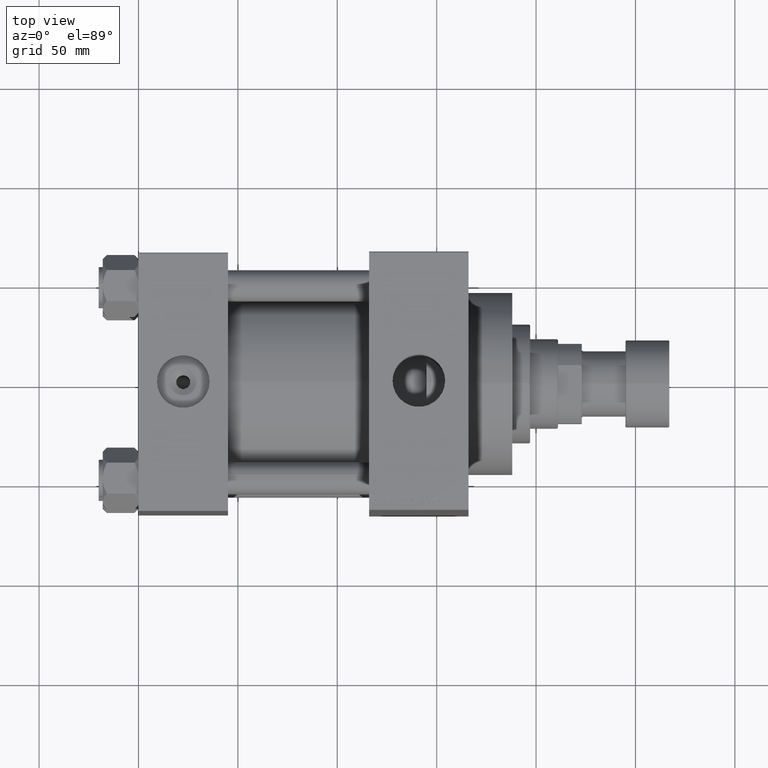
[diagram: clean part render]
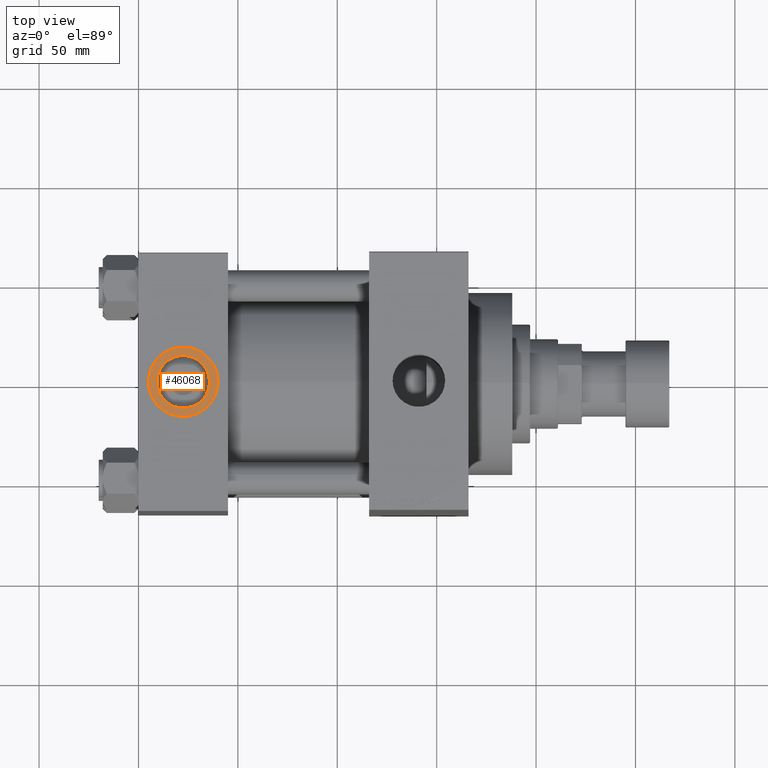
[diagram: same view with one face highlighted and labeled with its STEP entity id]
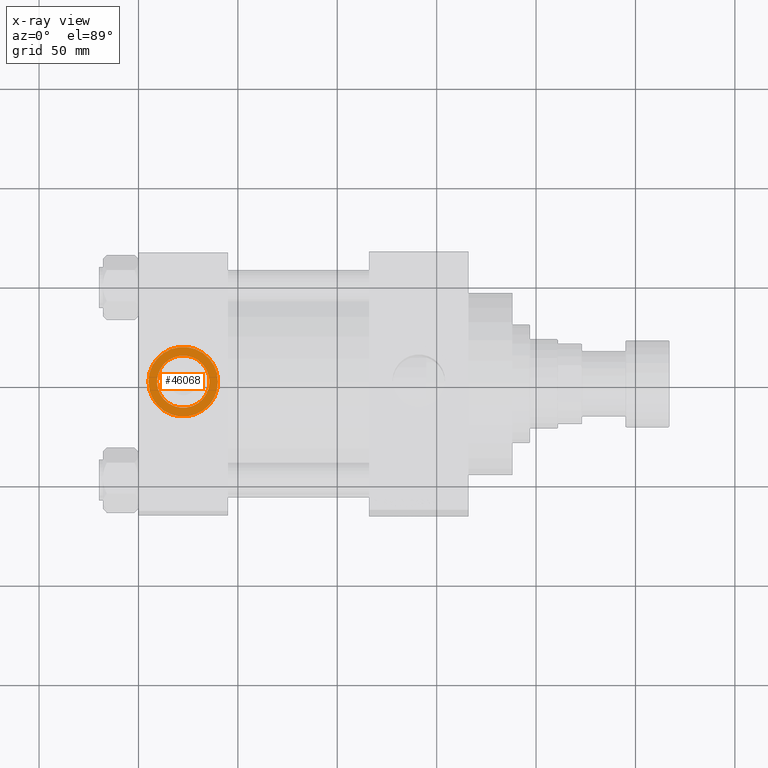
[diagram: x-ray of the same camera — body ghosted, the highlighted face saturated]
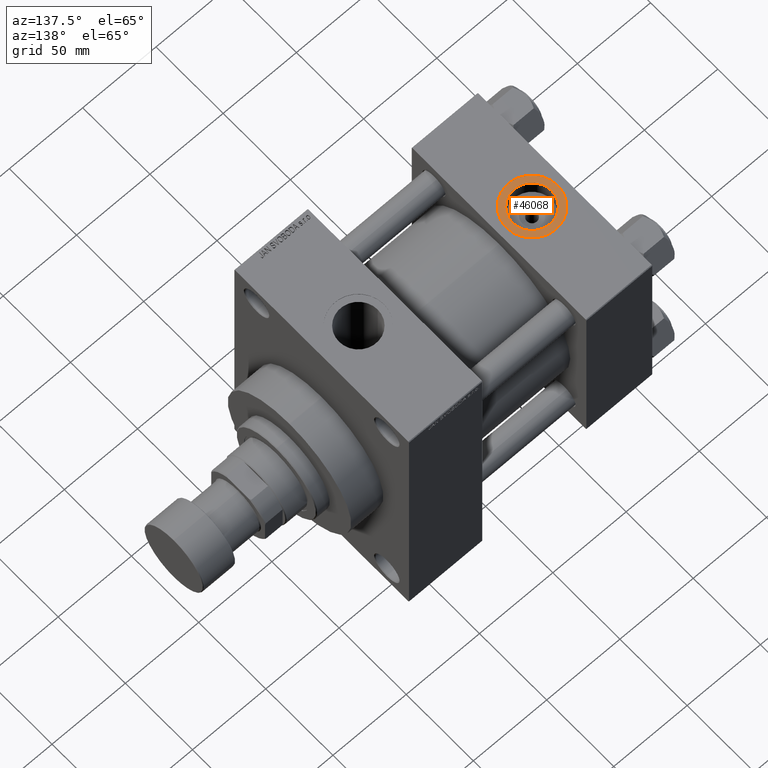
[diagram: same view with one face highlighted and labeled with its STEP entity id]
A machine part, top view. The second image highlights one B-rep face of the part: STEP entity #46068.
The next image is the same camera in x-ray: the body ghosted, the highlighted face saturated — about 0% of this face is hidden behind the body in this view.
A second angle (auxiliary view) of the same face is appended — the face is thin or edge-on in the first view.
In plain terms, the highlighted planar face has unit normal (0, 0, 1).
Its self-contained STEP definition (entity closure, byte-faithful):
#581 = ORIENTED_EDGE ( 'NONE', *, *, #17807, .T. ) ;
#8113 = ORIENTED_EDGE ( 'NONE', *, *, #45850, .T. ) ;
#8682 = CIRCLE ( 'NONE', #44403, 17.50000000000000000 ) ;
#9359 = DIRECTION ( 'NONE',  ( 1.000000000000000000, 0.000000000000000000, 0.000000000000000000 ) ) ;
#10071 = DIRECTION ( 'NONE',  ( 0.000000000000000000, 0.000000000000000000, 1.000000000000000000 ) ) ;
#11644 = DIRECTION ( 'NONE',  ( 0.000000000000000000, 0.000000000000000000, 1.000000000000000000 ) ) ;
#13484 = DIRECTION ( 'NONE',  ( 0.000000000000000000, 0.000000000000000000, 1.000000000000000000 ) ) ;
#13567 = CARTESIAN_POINT ( 'NONE',  ( 40.00000000000000000, -8.673617379884035472E-15, 64.79999999999999716 ) ) ;
#14505 = CARTESIAN_POINT ( 'NONE',  ( 22.50000000000000000, -8.673617379884035472E-15, 64.79999999999999716 ) ) ;
#14507 = ORIENTED_EDGE ( 'NONE', *, *, #15800, .F. ) ;
#15800 = EDGE_CURVE ( 'NONE', #48133, #42119, #47423, .T. ) ;
#15947 = VERTEX_POINT ( 'NONE', #13567 ) ;
#17130 = CARTESIAN_POINT ( 'NONE',  ( 22.50000000000000000, -8.673617379884035472E-15, 64.79999999999999716 ) ) ;
#17807 = EDGE_CURVE ( 'NONE', #15947, #38666, #8682, .T. ) ;
#18203 = DIRECTION ( 'NONE',  ( 0.000000000000000000, 0.000000000000000000, 1.000000000000000000 ) ) ;
#18789 = EDGE_LOOP ( 'NONE', ( #581, #8113 ) ) ;
#20200 = CARTESIAN_POINT ( 'NONE',  ( 9.279999999999994031, -7.054634311411234321E-15, 64.79999999999999716 ) ) ;
#21466 = CARTESIAN_POINT ( 'NONE',  ( 4.999999999999997335, -6.530485481376167224E-15, 64.79999999999999716 ) ) ;
#22035 = DIRECTION ( 'NONE',  ( 0.000000000000000000, 0.000000000000000000, 1.000000000000000000 ) ) ;
#23714 = PLANE ( 'NONE',  #29748 ) ;
#24734 = EDGE_CURVE ( 'NONE', #42119, #48133, #33680, .T. ) ;
#25262 = CARTESIAN_POINT ( 'NONE',  ( 22.50000000000000000, -8.673617379884035472E-15, 64.79999999999999716 ) ) ;
#25502 = DIRECTION ( 'NONE',  ( 1.000000000000000000, 0.000000000000000000, 0.000000000000000000 ) ) ;
#27256 = AXIS2_PLACEMENT_3D ( 'NONE', #37419, #11644, #40824 ) ;
#28606 = DIRECTION ( 'NONE',  ( 1.000000000000000000, 0.000000000000000000, 0.000000000000000000 ) ) ;
#29748 = AXIS2_PLACEMENT_3D ( 'NONE', #17130, #13484, #35363 ) ;
#30255 = CARTESIAN_POINT ( 'NONE',  ( 35.71999999999999886, -8.673617379884035472E-15, 64.79999999999999716 ) ) ;
#31341 = AXIS2_PLACEMENT_3D ( 'NONE', #25262, #18203, #25502 ) ;
#33014 = ORIENTED_EDGE ( 'NONE', *, *, #24734, .F. ) ;
#33680 = CIRCLE ( 'NONE', #31341, 13.22000000000000242 ) ;
#34450 = AXIS2_PLACEMENT_3D ( 'NONE', #14505, #22035, #28606 ) ;
#35125 = FACE_BOUND ( 'NONE', #46358, .T. ) ;
#35363 = DIRECTION ( 'NONE',  ( 1.000000000000000000, 0.000000000000000000, -0.000000000000000000 ) ) ;
#37419 = CARTESIAN_POINT ( 'NONE',  ( 22.50000000000000000, -8.673617379884035472E-15, 64.79999999999999716 ) ) ;
#38533 = FACE_OUTER_BOUND ( 'NONE', #18789, .T. ) ;
#38666 = VERTEX_POINT ( 'NONE', #21466 ) ;
#39493 = CARTESIAN_POINT ( 'NONE',  ( 22.50000000000000000, -8.673617379884035472E-15, 64.79999999999999716 ) ) ;
#40605 = CIRCLE ( 'NONE', #34450, 17.50000000000000000 ) ;
#40824 = DIRECTION ( 'NONE',  ( 1.000000000000000000, 0.000000000000000000, 0.000000000000000000 ) ) ;
#42119 = VERTEX_POINT ( 'NONE', #30255 ) ;
#44403 = AXIS2_PLACEMENT_3D ( 'NONE', #39493, #10071, #9359 ) ;
#45850 = EDGE_CURVE ( 'NONE', #38666, #15947, #40605, .T. ) ;
#46068 = ADVANCED_FACE ( 'NONE', ( #35125, #38533 ), #23714, .T. ) ;
#46358 = EDGE_LOOP ( 'NONE', ( #33014, #14507 ) ) ;
#47423 = CIRCLE ( 'NONE', #27256, 13.22000000000000242 ) ;
#48133 = VERTEX_POINT ( 'NONE', #20200 ) ;